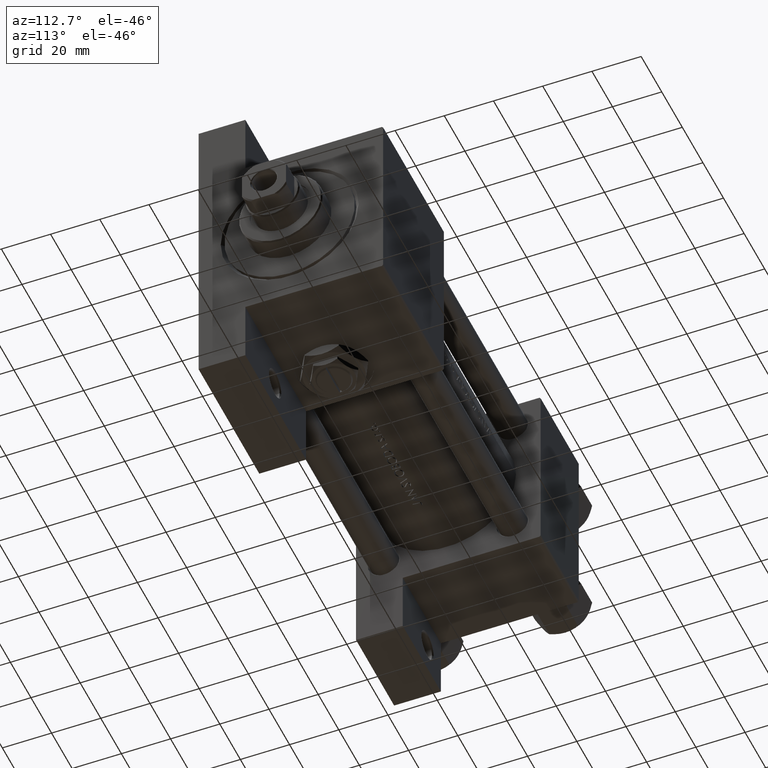
[diagram: clean part render]
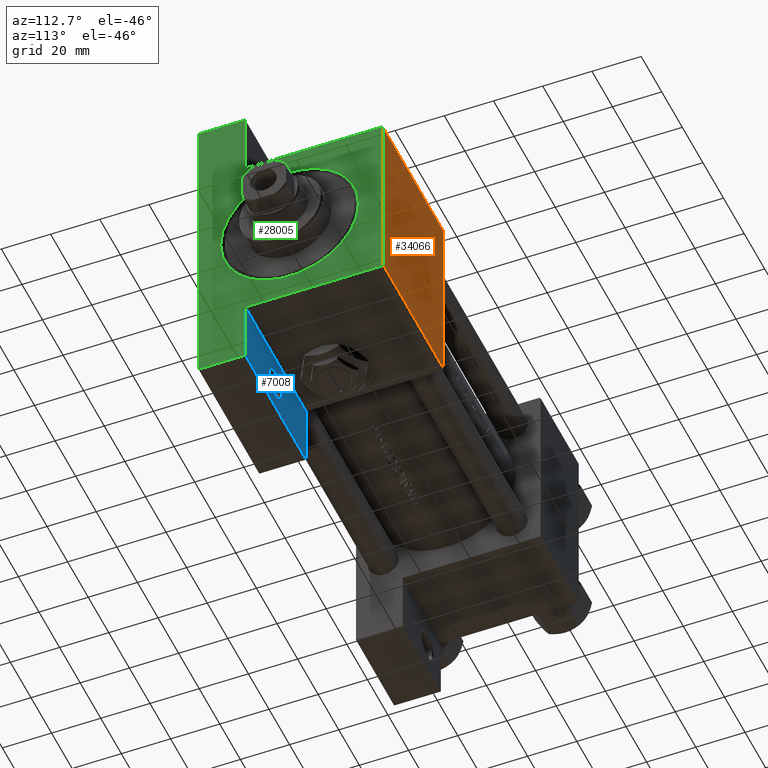
[diagram: same view with three faces highlighted in distinct colors, each labeled with its STEP entity id]
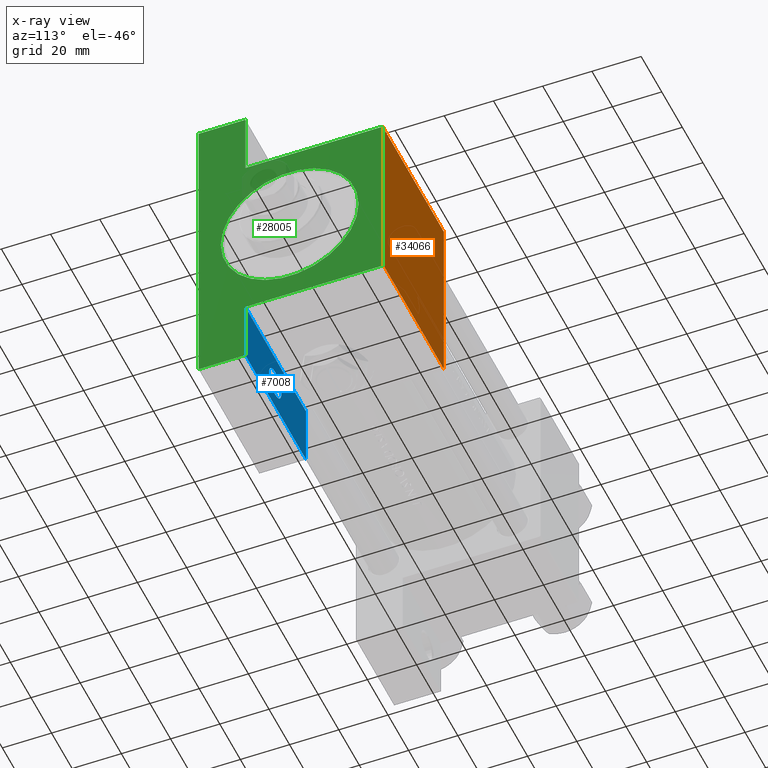
[diagram: x-ray of the same camera — body ghosted, the three highlighted faces saturated]
A machine part, auxiliary view with three faces highlighted in distinct colors.
The next image is the same camera in x-ray (body ghosted, the three faces saturated) — at least one of them is partly hidden behind the body in this view.
Their STEP definitions:

[orange] entity #34066 — the highlighted planar face has unit normal (0, -1, -0).
#1783 = VECTOR ( 'NONE', #4941, 1000.000000000000000 ) ;
#2588 = ORIENTED_EDGE ( 'NONE', *, *, #6753, .T. ) ;
#2879 = ORIENTED_EDGE ( 'NONE', *, *, #3436, .T. ) ;
#3436 = EDGE_CURVE ( 'NONE', #29371, #19800, #32826, .T. ) ;
#4344 = CARTESIAN_POINT ( 'NONE',  ( 131.0000000000000000, 37.50000000000000000, 37.49999999999999289 ) ) ;
#4941 = DIRECTION ( 'NONE',  ( 0.000000000000000000, -1.000000000000000000, -1.850371707708594316E-16 ) ) ;
#5090 = DIRECTION ( 'NONE',  ( 0.000000000000000000, 1.000000000000000000, 1.850371707708594316E-16 ) ) ;
#5341 = PLANE ( 'NONE',  #7595 ) ;
#5403 = VECTOR ( 'NONE', #14755, 1000.000000000000000 ) ;
#6753 = EDGE_CURVE ( 'NONE', #22756, #32270, #44653, .T. ) ;
#7595 = AXIS2_PLACEMENT_3D ( 'NONE', #16310, #16804, #5090 ) ;
#12812 = LINE ( 'NONE', #4344, #41790 ) ;
#14350 = EDGE_LOOP ( 'NONE', ( #36163, #2879, #21254, #2588 ) ) ;
#14755 = DIRECTION ( 'NONE',  ( 1.000000000000000000, 0.000000000000000000, 0.000000000000000000 ) ) ;
#16310 = CARTESIAN_POINT ( 'NONE',  ( 190.0000000000000000, 37.50000000000000000, 37.49999999999999289 ) ) ;
#16804 = DIRECTION ( 'NONE',  ( 0.000000000000000000, 1.850371707708594316E-16, -1.000000000000000000 ) ) ;
#18964 = CARTESIAN_POINT ( 'NONE',  ( 190.0000000000000000, -36.99999999999997158, 37.49999999999997868 ) ) ;
#19424 = CARTESIAN_POINT ( 'NONE',  ( 190.0000000000000000, 37.00000000000000000, 37.49999999999999289 ) ) ;
#19800 = VERTEX_POINT ( 'NONE', #26237 ) ;
#20030 = FACE_OUTER_BOUND ( 'NONE', #14350, .T. ) ;
#21217 = EDGE_CURVE ( 'NONE', #29371, #32270, #31862, .T. ) ;
#21254 = ORIENTED_EDGE ( 'NONE', *, *, #33323, .T. ) ;
#22675 = CARTESIAN_POINT ( 'NONE',  ( 131.0000000000000000, -36.99999999999997158, 37.49999999999997868 ) ) ;
#22756 = VERTEX_POINT ( 'NONE', #22675 ) ;
#23633 = CARTESIAN_POINT ( 'NONE',  ( 190.0000000000000000, 37.50000000000000000, 37.49999999999999289 ) ) ;
#25099 = CARTESIAN_POINT ( 'NONE',  ( 131.0000000000000000, 37.00000000000000000, 37.49999999999999289 ) ) ;
#26237 = CARTESIAN_POINT ( 'NONE',  ( 131.0000000000000000, 37.00000000000000000, 37.49999999999999289 ) ) ;
#28843 = DIRECTION ( 'NONE',  ( -1.000000000000000000, 0.000000000000000000, 0.000000000000000000 ) ) ;
#29371 = VERTEX_POINT ( 'NONE', #19424 ) ;
#31862 = LINE ( 'NONE', #23633, #1783 ) ;
#32270 = VERTEX_POINT ( 'NONE', #34310 ) ;
#32826 = LINE ( 'NONE', #25099, #41114 ) ;
#33323 = EDGE_CURVE ( 'NONE', #19800, #22756, #12812, .T. ) ;
#34066 = ADVANCED_FACE ( 'NONE', ( #20030 ), #5341, .F. ) ;
#34310 = CARTESIAN_POINT ( 'NONE',  ( 190.0000000000000000, -36.99999999999997158, 37.49999999999997868 ) ) ;
#36163 = ORIENTED_EDGE ( 'NONE', *, *, #21217, .F. ) ;
#41114 = VECTOR ( 'NONE', #28843, 1000.000000000000000 ) ;
#41790 = VECTOR ( 'NONE', #46184, 1000.000000000000000 ) ;
#44653 = LINE ( 'NONE', #18964, #5403 ) ;
#46184 = DIRECTION ( 'NONE',  ( 0.000000000000000000, -1.000000000000000000, -1.850371707708594316E-16 ) ) ;

[blue] entity #7008 — the highlighted planar face has unit normal (0, 1, 0).
#256 = VERTEX_POINT ( 'NONE', #29329 ) ;
#500 = AXIS2_PLACEMENT_3D ( 'NONE', #16965, #47336, #39881 ) ;
#943 = FACE_BOUND ( 'NONE', #45764, .T. ) ;
#1385 = EDGE_CURVE ( 'NONE', #6994, #2850, #16841, .T. ) ;
#1646 = CARTESIAN_POINT ( 'NONE',  ( 131.0000000000000284, 63.49999999999997158, -18.50000000000000000 ) ) ;
#2826 = DIRECTION ( 'NONE',  ( -0.000000000000000000, -0.000000000000000000, -1.000000000000000000 ) ) ;
#2850 = VERTEX_POINT ( 'NONE', #15821 ) ;
#5121 = ORIENTED_EDGE ( 'NONE', *, *, #48434, .F. ) ;
#5683 = LINE ( 'NONE', #13162, #48924 ) ;
#6379 = CARTESIAN_POINT ( 'NONE',  ( 155.0004999999999882, 50.99999999999999289, -18.50000000000000000 ) ) ;
#6729 = DIRECTION ( 'NONE',  ( -1.000000000000000000, 3.528251137579946599E-16, -0.000000000000000000 ) ) ;
#6994 = VERTEX_POINT ( 'NONE', #16389 ) ;
#7008 = ADVANCED_FACE ( 'NONE', ( #943, #31840 ), #46513, .T. ) ;
#7937 = VECTOR ( 'NONE', #6729, 1000.000000000000000 ) ;
#9647 = CARTESIAN_POINT ( 'NONE',  ( 131.0000000000000284, 63.49999999999997158, -18.50000000000000000 ) ) ;
#10779 = DIRECTION ( 'NONE',  ( 1.000000000000000000, 0.000000000000000000, 0.000000000000000000 ) ) ;
#12028 = VERTEX_POINT ( 'NONE', #6379 ) ;
#13162 = CARTESIAN_POINT ( 'NONE',  ( 190.0000000000000284, 63.50000000000000000, -18.50000000000000000 ) ) ;
#14223 = CARTESIAN_POINT ( 'NONE',  ( 131.0000000000000000, 37.50000000000000000, -18.50000000000000000 ) ) ;
#15642 = DIRECTION ( 'NONE',  ( 0.000000000000000000, 0.000000000000000000, 1.000000000000000000 ) ) ;
#15821 = CARTESIAN_POINT ( 'NONE',  ( 190.0000000000000284, 63.50000000000000000, -18.50000000000000000 ) ) ;
#16389 = CARTESIAN_POINT ( 'NONE',  ( 131.0000000000000284, 63.49999999999997158, -18.50000000000000000 ) ) ;
#16841 = LINE ( 'NONE', #1646, #25164 ) ;
#16965 = CARTESIAN_POINT ( 'NONE',  ( 161.0000000000000284, 50.99999999999999289, -18.50000000000000000 ) ) ;
#18040 = CIRCLE ( 'NONE', #40334, 5.999500000000046462 ) ;
#22127 = AXIS2_PLACEMENT_3D ( 'NONE', #38795, #15642, #31336 ) ;
#23233 = EDGE_CURVE ( 'NONE', #45148, #6994, #24843, .T. ) ;
#24362 = CIRCLE ( 'NONE', #500, 5.999500000000046462 ) ;
#24843 = LINE ( 'NONE', #9647, #39225 ) ;
#25164 = VECTOR ( 'NONE', #40240, 1000.000000000000000 ) ;
#27716 = CARTESIAN_POINT ( 'NONE',  ( 131.0000000000000000, 37.50000000000000000, -18.50000000000000355 ) ) ;
#29329 = CARTESIAN_POINT ( 'NONE',  ( 166.9995000000000687, 50.99999999999999289, -18.50000000000000000 ) ) ;
#31037 = EDGE_CURVE ( 'NONE', #12028, #256, #24362, .T. ) ;
#31336 = DIRECTION ( 'NONE',  ( 1.000000000000000000, 0.000000000000000000, -0.000000000000000000 ) ) ;
#31369 = EDGE_CURVE ( 'NONE', #2850, #41781, #5683, .T. ) ;
#31840 = FACE_OUTER_BOUND ( 'NONE', #33750, .T. ) ;
#32603 = DIRECTION ( 'NONE',  ( -1.067522139062649685E-15, -1.000000000000000000, 0.000000000000000000 ) ) ;
#33326 = ORIENTED_EDGE ( 'NONE', *, *, #31037, .T. ) ;
#33511 = CARTESIAN_POINT ( 'NONE',  ( 190.0000000000000000, 37.49999999999997868, -18.50000000000000000 ) ) ;
#33750 = EDGE_LOOP ( 'NONE', ( #46571, #5121, #45474, #47069 ) ) ;
#33866 = LINE ( 'NONE', #14223, #7937 ) ;
#34668 = ORIENTED_EDGE ( 'NONE', *, *, #35778, .T. ) ;
#35778 = EDGE_CURVE ( 'NONE', #256, #12028, #18040, .T. ) ;
#38795 = CARTESIAN_POINT ( 'NONE',  ( 0.000000000000000000, 0.000000000000000000, -18.50000000000000000 ) ) ;
#39225 = VECTOR ( 'NONE', #40024, 1000.000000000000000 ) ;
#39881 = DIRECTION ( 'NONE',  ( 1.000000000000000000, 0.000000000000000000, 0.000000000000000000 ) ) ;
#40024 = DIRECTION ( 'NONE',  ( 1.067522139062651657E-15, 1.000000000000000000, -0.000000000000000000 ) ) ;
#40240 = DIRECTION ( 'NONE',  ( 1.000000000000000000, 4.704334850106595794E-16, 0.000000000000000000 ) ) ;
#40334 = AXIS2_PLACEMENT_3D ( 'NONE', #47912, #2826, #10779 ) ;
#41781 = VERTEX_POINT ( 'NONE', #33511 ) ;
#45148 = VERTEX_POINT ( 'NONE', #27716 ) ;
#45474 = ORIENTED_EDGE ( 'NONE', *, *, #31369, .F. ) ;
#45764 = EDGE_LOOP ( 'NONE', ( #34668, #33326 ) ) ;
#46513 = PLANE ( 'NONE',  #22127 ) ;
#46571 = ORIENTED_EDGE ( 'NONE', *, *, #23233, .F. ) ;
#47069 = ORIENTED_EDGE ( 'NONE', *, *, #1385, .F. ) ;
#47336 = DIRECTION ( 'NONE',  ( -0.000000000000000000, -0.000000000000000000, -1.000000000000000000 ) ) ;
#47912 = CARTESIAN_POINT ( 'NONE',  ( 161.0000000000000284, 50.99999999999999289, -18.50000000000000000 ) ) ;
#48434 = EDGE_CURVE ( 'NONE', #41781, #45148, #33866, .T. ) ;
#48924 = VECTOR ( 'NONE', #32603, 1000.000000000000000 ) ;

[green] entity #28005 — the highlighted planar face has unit normal (-1, 0, 0).
#73 = CARTESIAN_POINT ( 'NONE',  ( 190.0000000000000000, 0.000000000000000000, 0.000000000000000000 ) ) ;
#249 = DIRECTION ( 'NONE',  ( 0.000000000000000000, 0.000000000000000000, -1.000000000000000000 ) ) ;
#1056 = EDGE_CURVE ( 'NONE', #14325, #29371, #32630, .T. ) ;
#1783 = VECTOR ( 'NONE', #4941, 1000.000000000000000 ) ;
#2013 = DIRECTION ( 'NONE',  ( 0.000000000000000000, 0.000000000000000000, 1.000000000000000000 ) ) ;
#2772 = DIRECTION ( 'NONE',  ( -1.000000000000000000, -0.000000000000000000, 0.000000000000000000 ) ) ;
#2847 = DIRECTION ( 'NONE',  ( -0.000000000000000000, -0.7071067811865474617, -0.7071067811865474617 ) ) ;
#2850 = VERTEX_POINT ( 'NONE', #15821 ) ;
#3839 = CARTESIAN_POINT ( 'NONE',  ( 190.0000000000000000, -37.50000000000000711, -18.50000000000000355 ) ) ;
#4262 = ORIENTED_EDGE ( 'NONE', *, *, #14727, .T. ) ;
#4941 = DIRECTION ( 'NONE',  ( 0.000000000000000000, -1.000000000000000000, -1.850371707708594316E-16 ) ) ;
#5055 = VERTEX_POINT ( 'NONE', #41145 ) ;
#5683 = LINE ( 'NONE', #13162, #48924 ) ;
#5826 = CARTESIAN_POINT ( 'NONE',  ( 190.0000000000000000, 0.000000000000000000, -0.5000000000000004441 ) ) ;
#6108 = VERTEX_POINT ( 'NONE', #8975 ) ;
#6768 = ORIENTED_EDGE ( 'NONE', *, *, #11970, .T. ) ;
#7637 = VERTEX_POINT ( 'NONE', #18528 ) ;
#7956 = LINE ( 'NONE', #25938, #27104 ) ;
#8339 = VECTOR ( 'NONE', #29460, 1000.000000000000000 ) ;
#8533 = VERTEX_POINT ( 'NONE', #3839 ) ;
#8975 = CARTESIAN_POINT ( 'NONE',  ( 190.0000000000000284, 63.50000000000000000, -37.50000000000000000 ) ) ;
#9626 = LINE ( 'NONE', #16850, #11836 ) ;
#10390 = CIRCLE ( 'NONE', #43761, 27.99999999999996803 ) ;
#10436 = CARTESIAN_POINT ( 'NONE',  ( 190.0000000000000284, 63.50000000000000000, -18.50000000000000000 ) ) ;
#11525 = FACE_OUTER_BOUND ( 'NONE', #33556, .T. ) ;
#11836 = VECTOR ( 'NONE', #32047, 1000.000000000000000 ) ;
#11970 = EDGE_CURVE ( 'NONE', #7637, #5055, #9626, .T. ) ;
#12841 = CARTESIAN_POINT ( 'NONE',  ( 190.0000000000000000, 0.000000000000000000, -28.49999999999997158 ) ) ;
#12986 = VECTOR ( 'NONE', #2847, 1000.000000000000114 ) ;
#13162 = CARTESIAN_POINT ( 'NONE',  ( 190.0000000000000284, 63.50000000000000000, -18.50000000000000000 ) ) ;
#14178 = LINE ( 'NONE', #10436, #47352 ) ;
#14289 = CARTESIAN_POINT ( 'NONE',  ( 190.0000000000000000, 37.50000000000000000, 36.99999999999999289 ) ) ;
#14325 = VERTEX_POINT ( 'NONE', #14289 ) ;
#14727 = EDGE_CURVE ( 'NONE', #47031, #46730, #10390, .T. ) ;
#15821 = CARTESIAN_POINT ( 'NONE',  ( 190.0000000000000284, 63.50000000000000000, -18.50000000000000000 ) ) ;
#16567 = LINE ( 'NONE', #23793, #46260 ) ;
#16850 = CARTESIAN_POINT ( 'NONE',  ( 190.0000000000000000, -63.50000000000002842, -18.50000000000000000 ) ) ;
#17117 = AXIS2_PLACEMENT_3D ( 'NONE', #73, #26723, #19240 ) ;
#17145 = VECTOR ( 'NONE', #27785, 1000.000000000000000 ) ;
#18285 = CIRCLE ( 'NONE', #40586, 27.99999999999996803 ) ;
#18392 = DIRECTION ( 'NONE',  ( 0.000000000000000000, 0.000000000000000000, -1.000000000000000000 ) ) ;
#18528 = CARTESIAN_POINT ( 'NONE',  ( 190.0000000000000000, -63.50000000000002842, -18.50000000000000000 ) ) ;
#18762 = ORIENTED_EDGE ( 'NONE', *, *, #1056, .T. ) ;
#19240 = DIRECTION ( 'NONE',  ( 0.000000000000000000, 0.000000000000000000, 1.000000000000000000 ) ) ;
#19424 = CARTESIAN_POINT ( 'NONE',  ( 190.0000000000000000, 37.00000000000000000, 37.49999999999999289 ) ) ;
#19772 = ORIENTED_EDGE ( 'NONE', *, *, #31369, .T. ) ;
#20324 = VECTOR ( 'NONE', #32373, 1000.000000000000114 ) ;
#20529 = EDGE_CURVE ( 'NONE', #8533, #7637, #16567, .T. ) ;
#21013 = DIRECTION ( 'NONE',  ( -1.000000000000000000, -0.000000000000000000, 0.000000000000000000 ) ) ;
#21217 = EDGE_CURVE ( 'NONE', #29371, #32270, #31862, .T. ) ;
#21722 = LINE ( 'NONE', #33663, #8339 ) ;
#23633 = CARTESIAN_POINT ( 'NONE',  ( 190.0000000000000000, 37.50000000000000000, 37.49999999999999289 ) ) ;
#23731 = EDGE_CURVE ( 'NONE', #32270, #45663, #25027, .T. ) ;
#23793 = CARTESIAN_POINT ( 'NONE',  ( 190.0000000000000000, -63.50000000000002842, -18.50000000000000000 ) ) ;
#25027 = LINE ( 'NONE', #40206, #12986 ) ;
#25938 = CARTESIAN_POINT ( 'NONE',  ( 190.0000000000000000, 37.50000000000000000, 37.49999999999999289 ) ) ;
#26723 = DIRECTION ( 'NONE',  ( -1.000000000000000000, -0.000000000000000000, 0.000000000000000000 ) ) ;
#27104 = VECTOR ( 'NONE', #249, 1000.000000000000000 ) ;
#27717 = PLANE ( 'NONE',  #17117 ) ;
#27785 = DIRECTION ( 'NONE',  ( 0.000000000000000000, -1.000000000000000000, 0.000000000000000000 ) ) ;
#28005 = ADVANCED_FACE ( 'NONE', ( #34201, #11525 ), #27717, .F. ) ;
#28319 = EDGE_CURVE ( 'NONE', #45663, #8533, #21722, .T. ) ;
#28637 = EDGE_CURVE ( 'NONE', #6108, #5055, #30532, .T. ) ;
#28710 = ORIENTED_EDGE ( 'NONE', *, *, #44008, .T. ) ;
#29371 = VERTEX_POINT ( 'NONE', #19424 ) ;
#29460 = DIRECTION ( 'NONE',  ( 0.000000000000000000, -9.251858538542972814E-17, -1.000000000000000000 ) ) ;
#29491 = ORIENTED_EDGE ( 'NONE', *, *, #28319, .T. ) ;
#30532 = LINE ( 'NONE', #45701, #17145 ) ;
#30712 = ORIENTED_EDGE ( 'NONE', *, *, #32227, .F. ) ;
#31369 = EDGE_CURVE ( 'NONE', #2850, #41781, #5683, .T. ) ;
#31463 = CARTESIAN_POINT ( 'NONE',  ( 190.0000000000000000, 3.429011037612585332E-15, 27.49999999999996803 ) ) ;
#31705 = ORIENTED_EDGE ( 'NONE', *, *, #23731, .T. ) ;
#31862 = LINE ( 'NONE', #23633, #1783 ) ;
#32047 = DIRECTION ( 'NONE',  ( 0.000000000000000000, 0.000000000000000000, -1.000000000000000000 ) ) ;
#32227 = EDGE_CURVE ( 'NONE', #2850, #6108, #14178, .T. ) ;
#32270 = VERTEX_POINT ( 'NONE', #34310 ) ;
#32373 = DIRECTION ( 'NONE',  ( 0.000000000000000000, -0.7071067811865474617, 0.7071067811865474617 ) ) ;
#32603 = DIRECTION ( 'NONE',  ( -1.067522139062649685E-15, -1.000000000000000000, 0.000000000000000000 ) ) ;
#32630 = LINE ( 'NONE', #39339, #20324 ) ;
#33511 = CARTESIAN_POINT ( 'NONE',  ( 190.0000000000000000, 37.49999999999997868, -18.50000000000000000 ) ) ;
#33556 = EDGE_LOOP ( 'NONE', ( #41173, #18762, #47408, #31705, #29491, #34417, #6768, #44025, #30712, #19772 ) ) ;
#33663 = CARTESIAN_POINT ( 'NONE',  ( 190.0000000000000000, -37.50000000000000000, 37.49999999999997868 ) ) ;
#34201 = FACE_BOUND ( 'NONE', #45084, .T. ) ;
#34310 = CARTESIAN_POINT ( 'NONE',  ( 190.0000000000000000, -36.99999999999997158, 37.49999999999997868 ) ) ;
#34417 = ORIENTED_EDGE ( 'NONE', *, *, #20529, .T. ) ;
#36467 = DIRECTION ( 'NONE',  ( 0.000000000000000000, 0.000000000000000000, 1.000000000000000000 ) ) ;
#39339 = CARTESIAN_POINT ( 'NONE',  ( 190.0000000000000000, 37.00000000000000000, 37.49999999999999289 ) ) ;
#39477 = CARTESIAN_POINT ( 'NONE',  ( 190.0000000000000000, -37.50000000000000000, 36.99999999999995026 ) ) ;
#40206 = CARTESIAN_POINT ( 'NONE',  ( 190.0000000000000000, -37.50000000000000000, 36.99999999999995026 ) ) ;
#40586 = AXIS2_PLACEMENT_3D ( 'NONE', #5826, #21013, #36467 ) ;
#41145 = CARTESIAN_POINT ( 'NONE',  ( 190.0000000000000000, -63.50000000000002842, -37.50000000000000000 ) ) ;
#41173 = ORIENTED_EDGE ( 'NONE', *, *, #44412, .F. ) ;
#41781 = VERTEX_POINT ( 'NONE', #33511 ) ;
#42952 = DIRECTION ( 'NONE',  ( -0.000000000000000000, -1.000000000000000000, -0.000000000000000000 ) ) ;
#43614 = CARTESIAN_POINT ( 'NONE',  ( 190.0000000000000000, 0.000000000000000000, -0.5000000000000004441 ) ) ;
#43761 = AXIS2_PLACEMENT_3D ( 'NONE', #43614, #2772, #2013 ) ;
#44008 = EDGE_CURVE ( 'NONE', #46730, #47031, #18285, .T. ) ;
#44025 = ORIENTED_EDGE ( 'NONE', *, *, #28637, .F. ) ;
#44412 = EDGE_CURVE ( 'NONE', #14325, #41781, #7956, .T. ) ;
#45084 = EDGE_LOOP ( 'NONE', ( #28710, #4262 ) ) ;
#45663 = VERTEX_POINT ( 'NONE', #39477 ) ;
#45701 = CARTESIAN_POINT ( 'NONE',  ( 190.0000000000000000, 37.50000000000000000, -37.50000000000000000 ) ) ;
#46260 = VECTOR ( 'NONE', #42952, 1000.000000000000000 ) ;
#46730 = VERTEX_POINT ( 'NONE', #12841 ) ;
#47031 = VERTEX_POINT ( 'NONE', #31463 ) ;
#47352 = VECTOR ( 'NONE', #18392, 1000.000000000000000 ) ;
#47408 = ORIENTED_EDGE ( 'NONE', *, *, #21217, .T. ) ;
#48924 = VECTOR ( 'NONE', #32603, 1000.000000000000000 ) ;